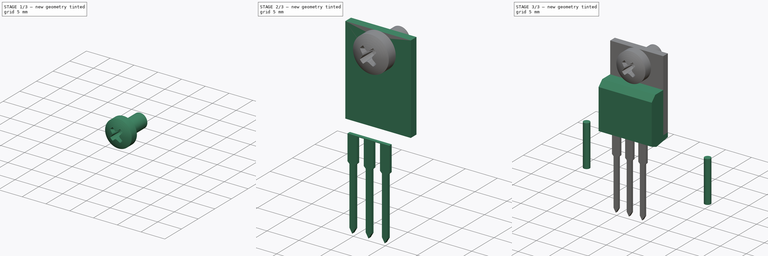
[diagram: build sequence overview — one tinted view per stage of 3, left to right]
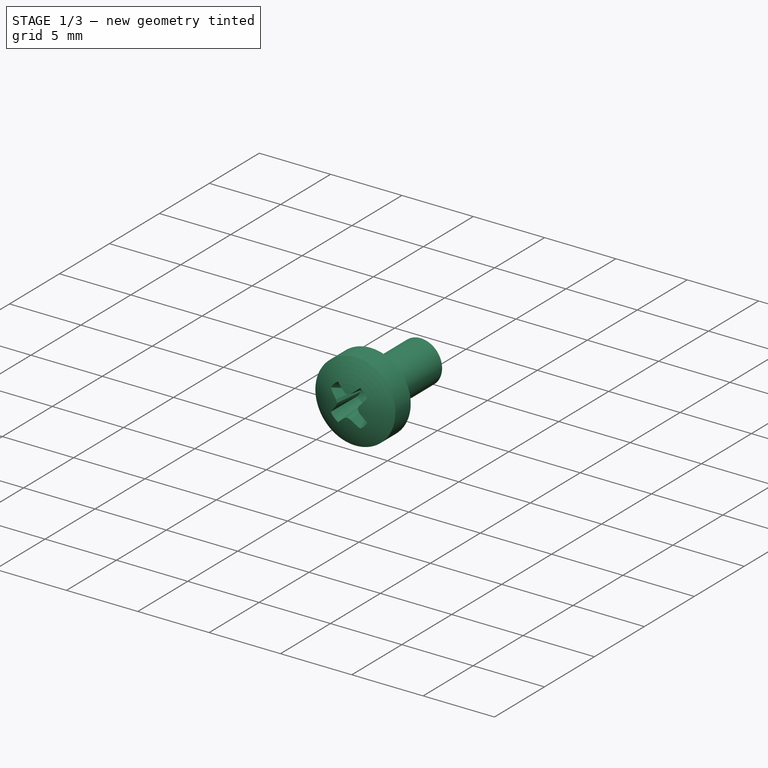
[diagram: stage 1 of 3 — iso view after this stage's code; geometry added in this stage tinted green]
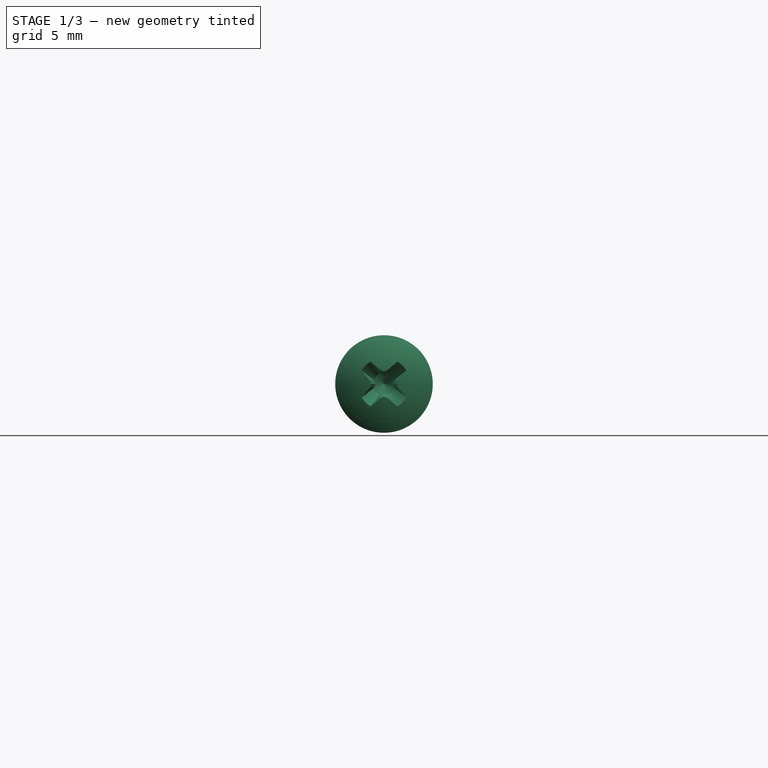
[diagram: stage 1 of 3 — front view after this stage's code; geometry added in this stage tinted green]
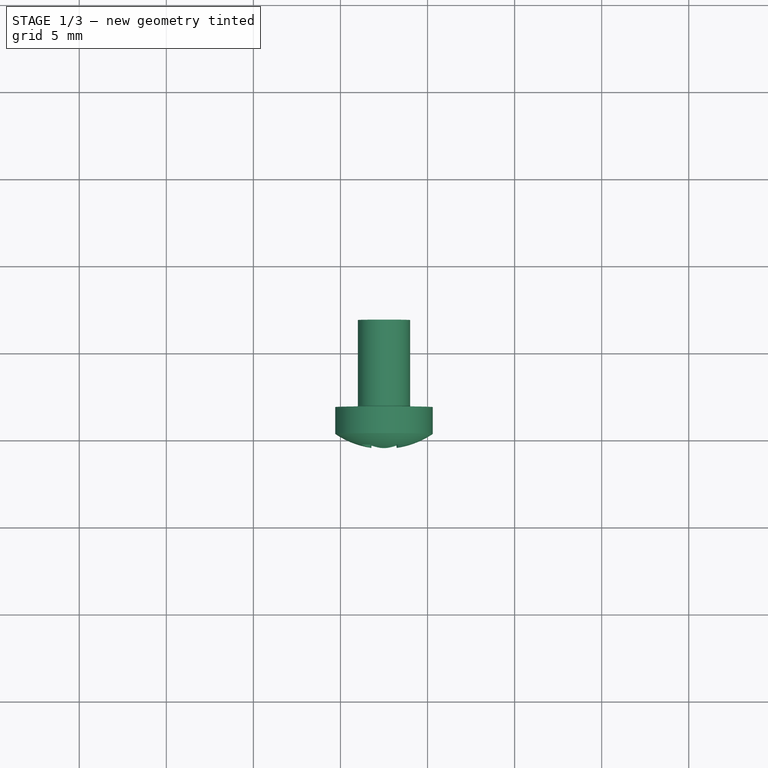
[diagram: stage 1 of 3 — top view after this stage's code; geometry added in this stage tinted green]
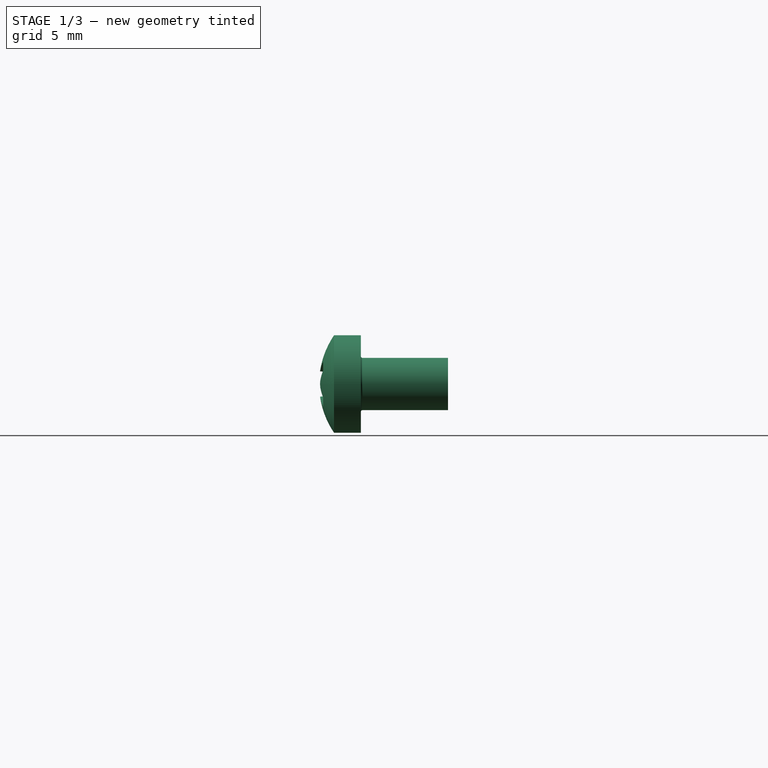
[diagram: stage 1 of 3 — right view after this stage's code; geometry added in this stage tinted green]
FCSTD DOCUMENT  (FreeCAD 0.20R25429 (Git))
Label: Heatsink-30x25x25_LM7805_TO220-3
License: All rights reserved
LicenseURL: http://en.wikipedia.org/wiki/All_rights_reserved
objects: Sketcher::SketchObject×7, PartDesign::Pad×6, PartDesign::Body×6, PartDesign::Pocket×1, Part::FeaturePython×1
note: 28 computed .brp shape members not serialized (recipe doc carries the construction recipe); baked Part::Feature solids carry a one-line shape summary decoded from their .brp

FEATURE [Sketcher::SketchObject] Sketch012  label="Heatsink Radiator001"
  FullyConstrained = true
  MapMode = 5
  Support = -> [XY_Plane]
  sketch-geometry (36):
    g0: LineSegment StartX=-12.56 StartY=-7.84 StartZ=0 EndX=-11.56 EndY=-7.84 EndZ=0
    g1: LineSegment StartX=-11.56 StartY=-7.84 StartZ=0 EndX=-11.56 EndY=3.16 EndZ=0
    g2: LineSegment StartX=16.64 StartY=3.16 StartZ=0 EndX=16.64 EndY=-7.84 EndZ=0
    g3: LineSegment StartX=16.64 StartY=-7.84 StartZ=0 EndX=17.64 EndY=-7.84 EndZ=0
    g4: LineSegment StartX=17.64 StartY=-7.84 StartZ=0 EndX=17.64 EndY=17.16 EndZ=0
    g5: LineSegment StartX=17.64 StartY=17.16 StartZ=0 EndX=16.64 EndY=17.16 EndZ=0
    g6: LineSegment StartX=16.64 StartY=17.16 StartZ=0 EndX=16.64 EndY=6.16 EndZ=0
    g7: LineSegment StartX=16.64 StartY=6.16 StartZ=0 EndX=14.82 EndY=6.16 EndZ=0
    g8: LineSegment StartX=11.8 StartY=6.16 StartZ=0 EndX=11.8 EndY=17.16 EndZ=0
    g9: LineSegment StartX=11.8 StartY=17.16 StartZ=0 EndX=10.8 EndY=17.16 EndZ=0
    g10: LineSegment StartX=10.8 StartY=17.16 StartZ=0 EndX=10.8 EndY=4.56 EndZ=0
    g11: LineSegment StartX=10.8 StartY=4.56 StartZ=0 EndX=5.96 EndY=4.56 EndZ=0
    g12: LineSegment StartX=5.96 StartY=4.56 StartZ=0 EndX=5.96 EndY=17.16 EndZ=0
    g13: LineSegment StartX=5.96 StartY=17.16 StartZ=0 EndX=4.96 EndY=17.16 EndZ=0
    g14: LineSegment StartX=4.96 StartY=17.16 StartZ=0 EndX=4.96 EndY=6.16 EndZ=0
    g15: LineSegment StartX=4.96 StartY=6.16 StartZ=0 EndX=0.12 EndY=6.16 EndZ=0
    g16: LineSegment StartX=0.12 StartY=6.16 StartZ=0 EndX=0.12 EndY=17.16 EndZ=0
    g17: LineSegment StartX=0.12 StartY=17.16 StartZ=0 EndX=-0.88 EndY=17.16 EndZ=0
    g18: LineSegment StartX=-0.88 StartY=17.16 StartZ=0 EndX=-0.88 EndY=4.56 EndZ=0
    g19: LineSegment StartX=-0.88 StartY=4.56 StartZ=0 EndX=-5.72 EndY=4.56 EndZ=0
    g20: LineSegment StartX=-5.72 StartY=4.56 StartZ=0 EndX=-5.72 EndY=17.16 EndZ=0
    g21: LineSegment StartX=-5.72 StartY=17.16 StartZ=0 EndX=-6.72 EndY=17.16 EndZ=0
    g22: LineSegment StartX=-6.72 StartY=17.16 StartZ=0 EndX=-6.72 EndY=6.16 EndZ=0
    g23: LineSegment StartX=-6.72 StartY=6.16 StartZ=0 EndX=-8.54 EndY=6.16 EndZ=0
    g24: LineSegment StartX=-11.56 StartY=6.16 StartZ=0 EndX=-11.56 EndY=17.16 EndZ=0
    g25: LineSegment StartX=-11.56 StartY=17.16 StartZ=0 EndX=-12.56 EndY=17.16 EndZ=0
    g26: LineSegment StartX=-12.56 StartY=17.16 StartZ=0 EndX=-12.56 EndY=-7.84 EndZ=0
    g27: ArcOfCircle CenterX=-9.14 CenterY=4.76 CenterZ=0 NormalX=0 NormalY=0 NormalZ=1 AngleXU=0 Radius=0.6 StartAngle=3.14159 EndAngle=6.28319
    g28: LineSegment StartX=11.8 StartY=6.16 StartZ=0 EndX=13.62 EndY=6.16 EndZ=0
    g29: LineSegment StartX=13.62 StartY=6.16 StartZ=0 EndX=13.62 EndY=4.76 EndZ=0
    g30: LineSegment StartX=14.82 StartY=6.16 StartZ=0 EndX=14.82 EndY=4.76 EndZ=0
    g31: ArcOfCircle CenterX=14.22 CenterY=4.76 CenterZ=0 NormalX=0 NormalY=0 NormalZ=1 AngleXU=0 Radius=0.6 StartAngle=3.14159 EndAngle=6.28319
    g32: LineSegment StartX=-8.54 StartY=6.16 StartZ=0 EndX=-8.54 EndY=4.76 EndZ=0
    g33: LineSegment StartX=-11.56 StartY=6.16 StartZ=0 EndX=-9.74 EndY=6.16 EndZ=0
    g34: LineSegment StartX=-9.74 StartY=6.16 StartZ=0 EndX=-9.74 EndY=4.76 EndZ=0
    g35: LineSegment StartX=-11.56 StartY=3.16 StartZ=0 EndX=16.64 EndY=3.16 EndZ=0
  constraints (106):
    c: Horizontal(g0)
    c: Coincident(g0,g1)
    c: Vertical(g1)
    c: Vertical(g2)
    c: Coincident(g2,g3)
    c: Horizontal(g3)
    c: Coincident(g3,g4)
    c: Vertical(g4)
    c: Coincident(g4,g5)
    c: Horizontal(g5)
    c: Coincident(g5,g6)
    c: Vertical(g6)
    c: Coincident(g6,g7)
    c: Horizontal(g7)
    c: Vertical(g8)
    c: Coincident(g8,g9)
    c: Horizontal(g9)
    c: Coincident(g9,g10)
    c: Vertical(g10)
    c: Coincident(g10,g11)
    c: Horizontal(g11)
    c: Coincident(g11,g12)
    c: Vertical(g12)
    c: Coincident(g12,g13)
    c: Horizontal(g13)
    c: Coincident(g13,g14)
    c: Vertical(g14)
    c: Coincident(g14,g15)
    c: Horizontal(g15)
    c: Coincident(g15,g16)
    c: Vertical(g16)
    c: Coincident(g16,g17)
    c: Horizontal(g17)
    c: Coincident(g17,g18)
    c: Vertical(g18)
    c: Coincident(g18,g19)
    c: Horizontal(g19)
    c: Coincident(g19,g20)
    c: Vertical(g20)
    c: Coincident(g20,g21)
    c: Horizontal(g21)
    c: Coincident(g21,g22)
    c: Vertical(g22)
    c: Coincident(g22,g23)
    c: Horizontal(g23)
    c: Vertical(g24)
    c: Coincident(g24,g25)
    c: Horizontal(g25)
    c: Coincident(g25,g26)
    c: Vertical(g26)
    c: Coincident(g26,g0)
    c: DistanceX(g25,g4) = 30.2
    c: DistanceX(g25,g25) = 1
    c: DistanceX(g21,g21) = 1
    c: DistanceX(g17,g17) = 1
    c: DistanceX(g13,g13) = 1
    c: DistanceX(g9,g9) = 1
    c: DistanceX(g5,g5) = 1
    c: DistanceX(g24,g21) = 4.84
    c: DistanceX(g20,g17) = 4.84
    c: DistanceX(g16,g13) = 4.84
    c: DistanceX(g12,g9) = 4.84
    c: DistanceX(g0,g0) = 1
    c: DistanceX(g3,g3) = 1
    c: DistanceY(g2,g6) = 3
    c: DistanceY(g2,g10) = 1.4
    c: DistanceY(g1,g23) = 3
    c: DistanceY(g1,g19) = 1.4
    c: DistanceY(g2,g14) = 3
    c: DistanceY(g21,g24) = 0
    c: DistanceY(g20,g17) = 0
    c: DistanceY(g16,g13) = 0
    c: DistanceY(g12,g9) = 0
    c: DistanceY(g8,g5) = 0
    c: DistanceY(g3,g2) = 11
    c: DistanceY(g3,g4) = 25
    c: Coincident(g28,g8)
    c: Horizontal(g28)
    c: Coincident(g29,g28)
    c: Vertical(g29)
    c: Coincident(g30,g7)
    c: Vertical(g30)
    c: Vertical(g32)
    c: Coincident(g33,g24)
    c: Horizontal(g33)
    c: Vertical(g34)
    c: Coincident(g34,g33)
    c: Coincident(g23,g32)
    c: Tangent(g27,g34) = -1.5708
    c: Tangent(g27,g32) = 1.5708
    c: Tangent(g29,g31) = -1.5708
    c: Tangent(g31,g30) = 1.5708
    c: Radius(g31) = 0.6
    c: Radius(g27) = 0.6
    c: DistanceY(g2,g31) = 1.6
    c: DistanceY(g1,g27) = 1.6
    c: DistanceY(g28,g7) = 0
    c: DistanceY(g33,g23) = 0
    c: DistanceX(g24,g27) = 2.42
    c: DistanceX(g31,g6) = 2.42
    c: DistanceX(g-1,g15) = 0.12
    c: DistanceY(g-1,g1) = 3.16
    c: Coincident(g35,g1)
    c: Coincident(g35,g2)
    c: Horizontal(g35)
    c: Horizontal(g2,g0)
FEATURE [PartDesign::Pad] Pad
  Direction = (0,0,1)
  Length = 25
  Length2 = 100
  Profile = -> Sketch012
  Type = 0
FEATURE [Sketcher::SketchObject] Sketch013  label="Heatsink Screwhole001"
  AttachmentOffset = pos=(0,0,-3.16) rot=(0,0,1;0rad)
  FullyConstrained = true
  MapMode = 5
  Placement = pos=(0,3.16,-7e-16) rot=(1,0,0;1.5708rad)
  Support = -> [XZ_Plane]
  sketch-geometry (1):
    g0: Circle CenterX=2.5 CenterY=18.25 CenterZ=0 NormalX=0 NormalY=0 NormalZ=1 AngleXU=0 Radius=1.25
  constraints (3):
    c: Radius(g0) = 1.25
    c: DistanceX(g-1,g0) = 2.5
    c: DistanceY(g-1,g0) = 18.25
FEATURE [PartDesign::Pocket] Pocket
  BaseFeature = -> Pad
  Length = 5
  Length2 = 100
  Profile = -> Sketch013
  Type = 1
FEATURE [PartDesign::Body] Body005  label="TO220-3 Legs"
  Group = -> [Sketch018,Pad005]
  Origin = -> Origin005
  Tip = -> Pad005
FEATURE [Part::FeaturePython] Screw  label="M3x5-Screw"  # Fasteners workbench fastener (typed FeaturePython)
  Placement = pos=(2.5,1.89,18.25) rot=(1,0,0;1.5708rad)
  baseObject = -> Body [Edge82]
  diameter = 4
  invert = false
  length = 1
  lengthCustom = 5
  matchOuter = false
  offset = 1.27
  thread = false
  type = 33
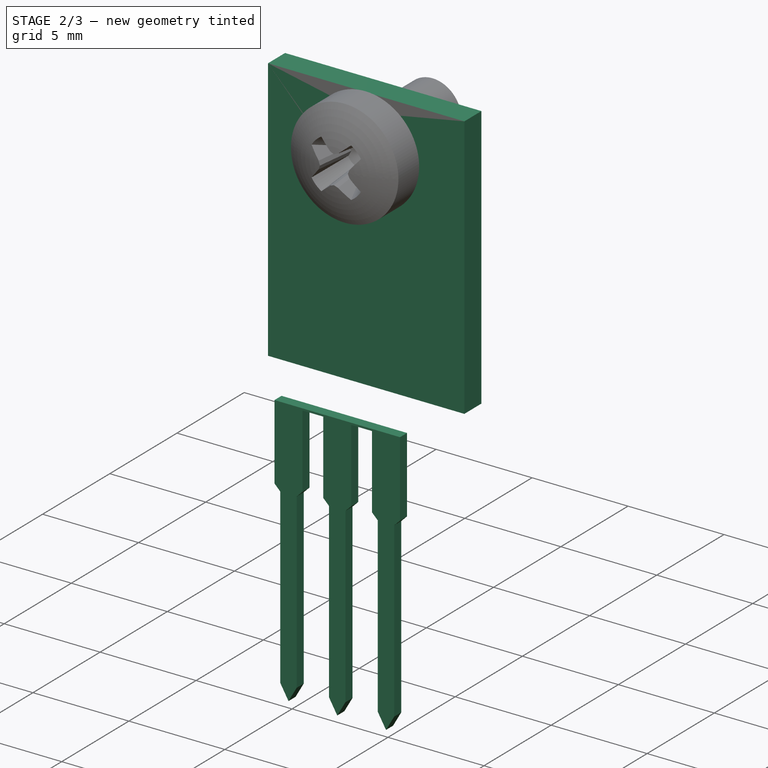
[diagram: stage 2 of 3 — iso view after this stage's code; geometry added in this stage tinted green]
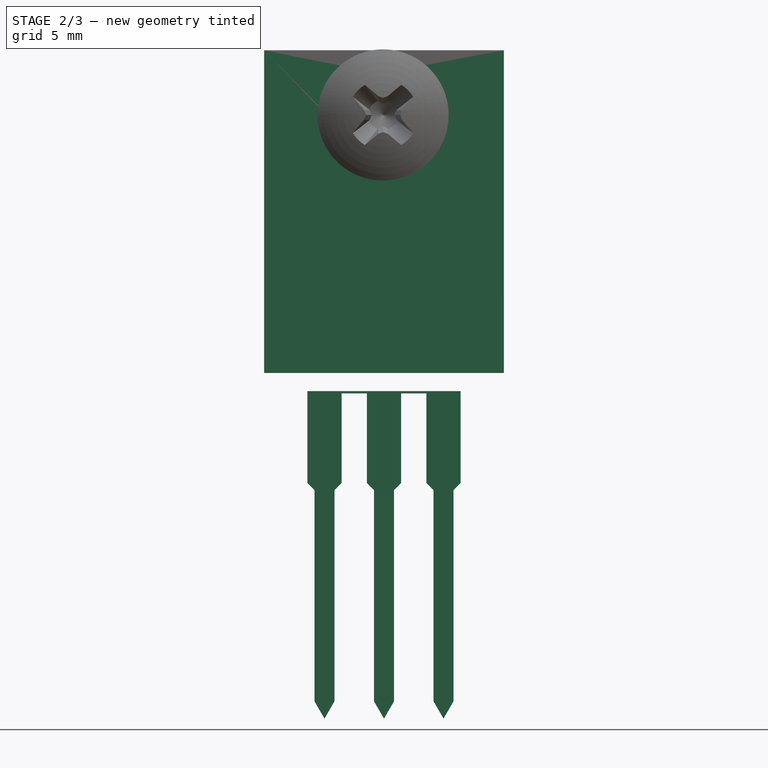
[diagram: stage 2 of 3 — front view after this stage's code; geometry added in this stage tinted green]
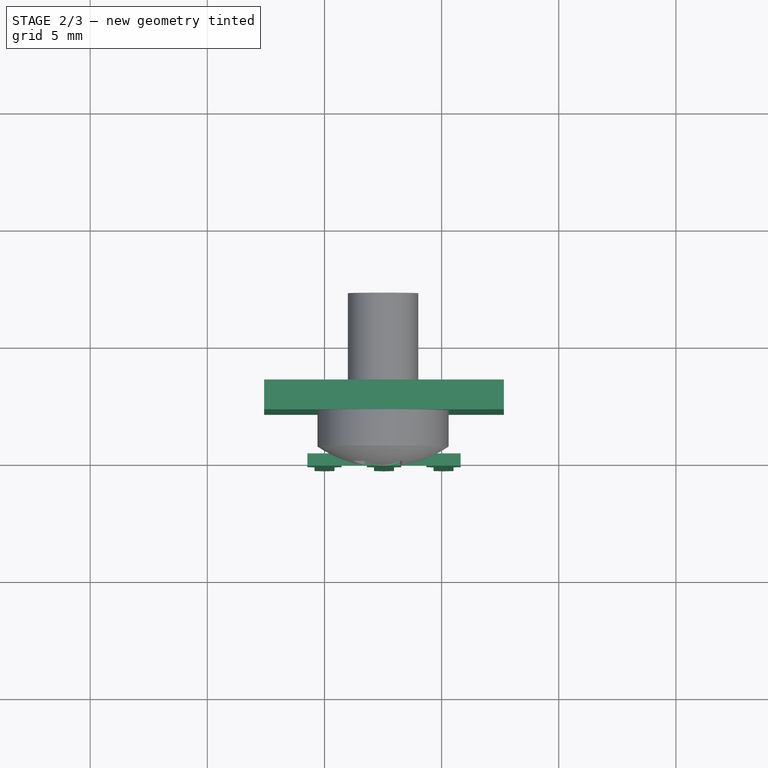
[diagram: stage 2 of 3 — top view after this stage's code; geometry added in this stage tinted green]
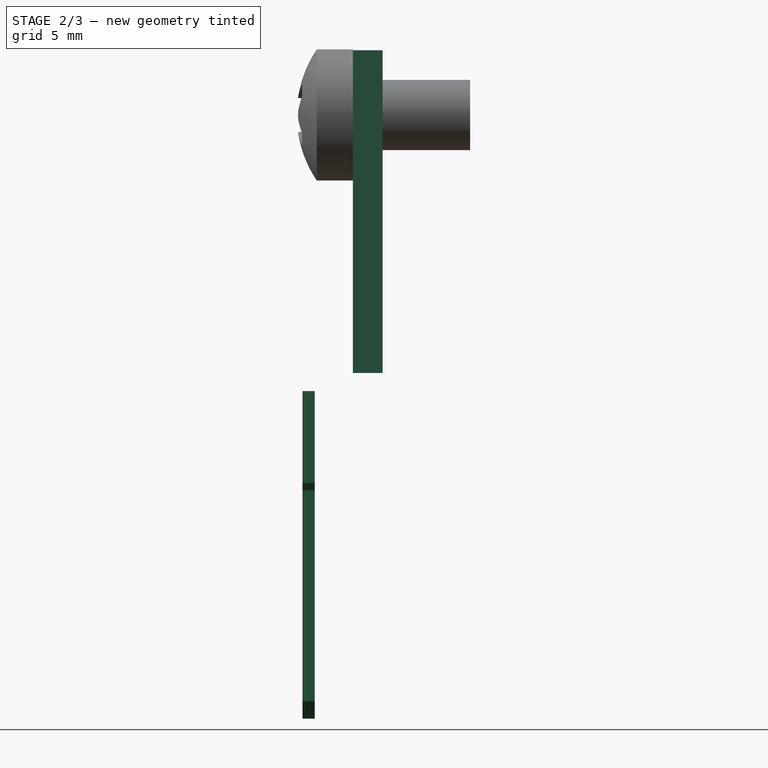
[diagram: stage 2 of 3 — right view after this stage's code; geometry added in this stage tinted green]
FEATURE [PartDesign::Body] Body003  label="TO220-3 Belly"
  Group = -> [Sketch016,Pad003]
  Origin = -> Origin003
  Tip = -> Pad003
FEATURE [PartDesign::Pad] Pad004
  Direction = (0,-1,2e-16)
  Length = 1.27
  Length2 = 100
  Placement = pos=(0,0,0) rot=(1,0,0;1.5708rad)
  Profile = -> Sketch019
  Type = 0
FEATURE [PartDesign::Body] Body004  label="TO220-3 Back"
  Group = -> [Sketch019,Pad004]
  Origin = -> Origin004
  Tip = -> Pad004
FEATURE [PartDesign::Pad] Pad005
  Direction = (0,-1,2e-16)
  Length = 0.525
  Length2 = 100
  Midplane = true
  Placement = pos=(0,0,0) rot=(1,0,0;1.5708rad)
  Profile = -> Sketch018
  Refine = true
  Type = 0
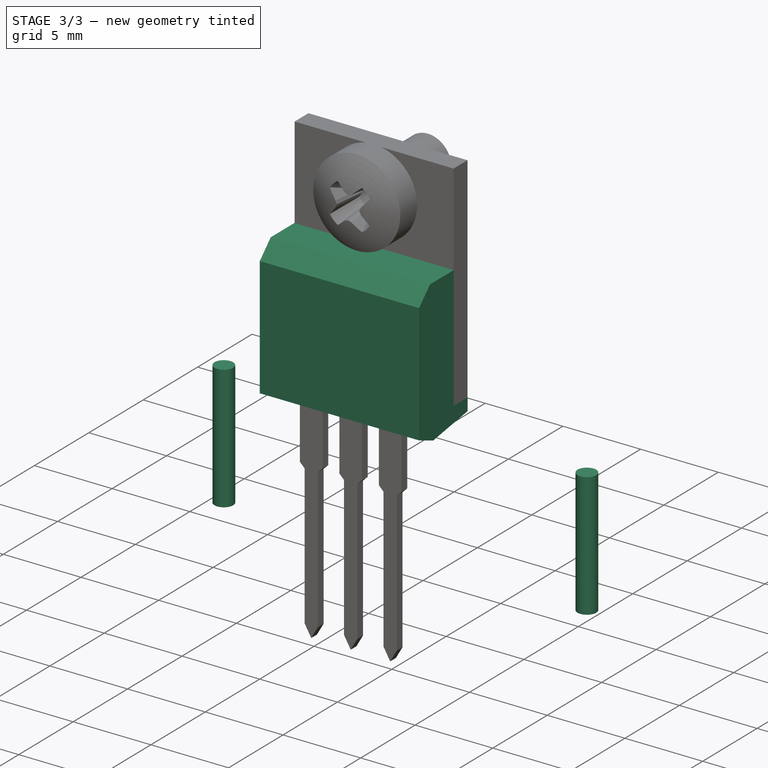
[diagram: stage 3 of 3 — iso view after this stage's code; geometry added in this stage tinted green]
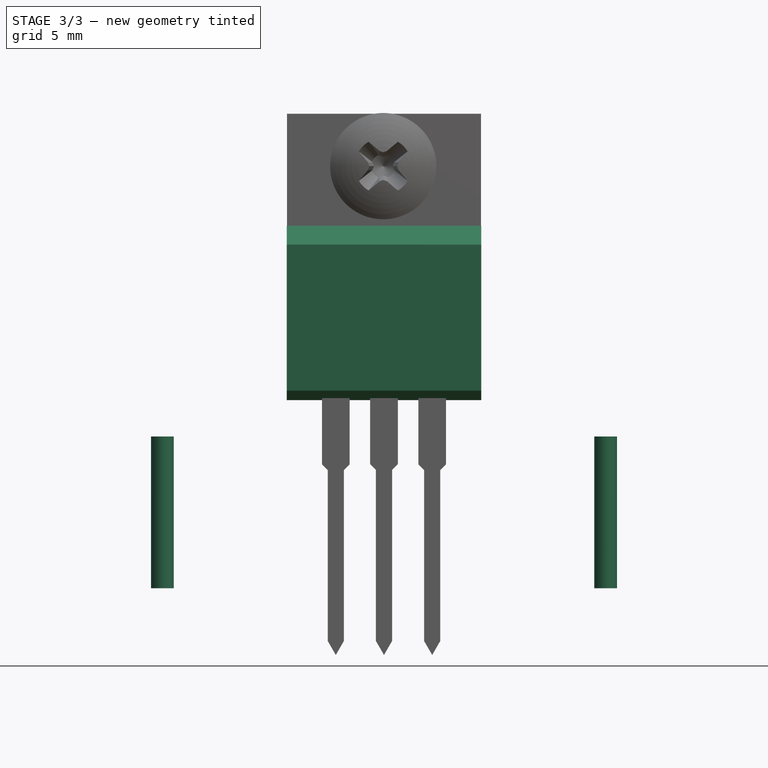
[diagram: stage 3 of 3 — front view after this stage's code; geometry added in this stage tinted green]
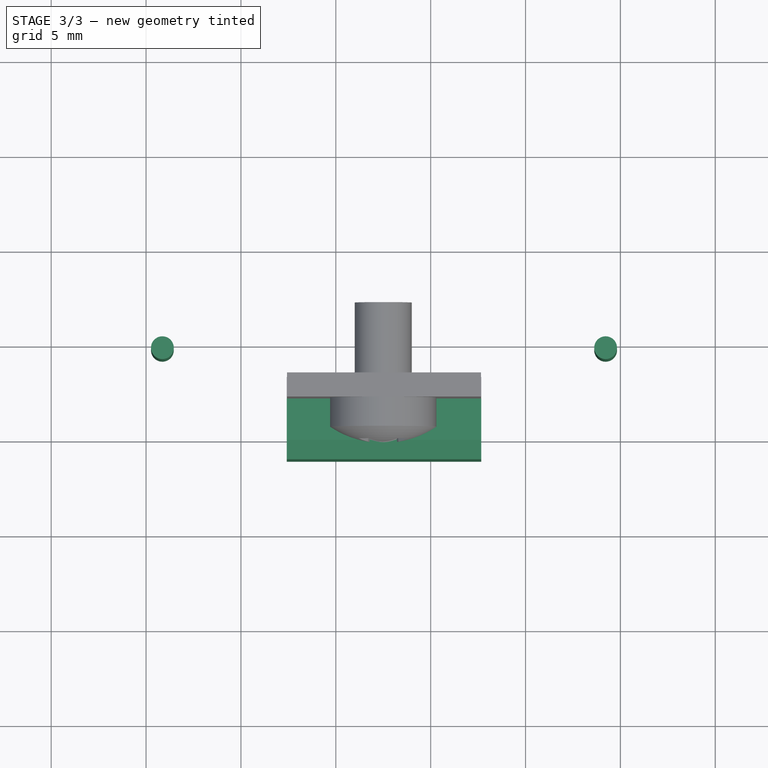
[diagram: stage 3 of 3 — top view after this stage's code; geometry added in this stage tinted green]
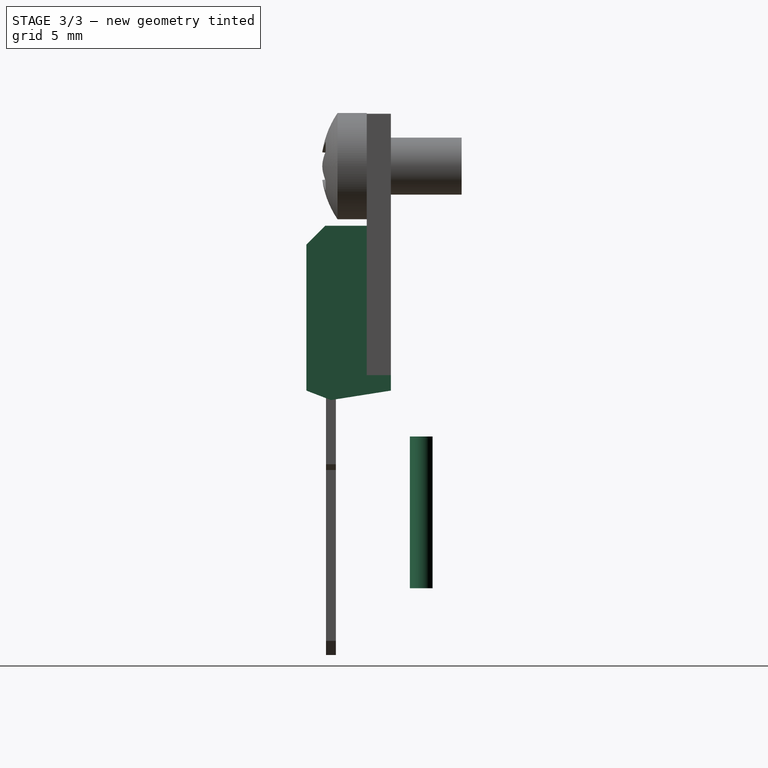
[diagram: stage 3 of 3 — right view after this stage's code; geometry added in this stage tinted green]
FEATURE [PartDesign::Body] Body  label="HTS Radiator"
  Group = -> [Sketch012,Pad,Sketch013,Pocket]
  Origin = -> Origin
  Tip = -> Pocket
FEATURE [Sketcher::SketchObject] Sketch014  label="Heatsink Foot R001"
  FullyConstrained = true
  MapMode = 5
  Support = -> [XY_Plane001]
  sketch-geometry (1):
    g0: Circle CenterX=-9.14 CenterY=4.76 CenterZ=0 NormalX=0 NormalY=0 NormalZ=1 AngleXU=0 Radius=0.6
  constraints (3):
    c: Diameter(g0) = 1.2
    c: DistanceX(g0) = -9.14
    c: DistanceY(g0) = 4.76
FEATURE [PartDesign::Pad] Pad001
  Direction = (0,0,1)
  Length = 8
  Length2 = 100
  Midplane = true
  Profile = -> Sketch014
  Type = 0
FEATURE [PartDesign::Body] Body001  label="HTS Foot R"
  Group = -> [Sketch014,Pad001]
  Origin = -> Origin001
  Tip = -> Pad001
FEATURE [Sketcher::SketchObject] Sketch015  label="Heatsink Foot L001"
  FullyConstrained = true
  MapMode = 5
  Support = -> [XY_Plane002]
  sketch-geometry (1):
    g0: Circle CenterX=14.22 CenterY=4.76 CenterZ=0 NormalX=0 NormalY=0 NormalZ=1 AngleXU=0 Radius=0.6
  constraints (3):
    c: Diameter(g0) = 1.2
    c: DistanceX(g0) = 14.22
    c: DistanceY(g0) = 4.76
FEATURE [PartDesign::Pad] Pad002
  Direction = (0,0,1)
  Length = 8
  Length2 = 100
  Midplane = true
  Profile = -> Sketch015
  Type = 0
FEATURE [PartDesign::Body] Body002  label="HTS Fool L"
  Group = -> [Sketch015,Pad002]
  Origin = -> Origin002
  Tip = -> Pad002
FEATURE [Sketcher::SketchObject] Sketch016  label="TO 220-3 Belly001"
  AttachmentOffset = pos=(0,0,-2.585) rot=(0,0,1;0rad)
  FullyConstrained = true
  MapMode = 5
  Placement = pos=(-2.585,6e-16,-6e-16) rot=(0.57735,0.57735,0.57735;2.0944rad)
  Support = -> [YZ_Plane003]
  sketch-geometry (8):
    g0: LineSegment StartX=3.16 StartY=6.42 StartZ=0 EndX=0 EndY=5.92 EndZ=0
    g1: LineSegment StartX=0 StartY=5.92 StartZ=0 EndX=-1.295 EndY=6.42 EndZ=0
    g2: LineSegment StartX=-1.295 StartY=6.42 StartZ=0 EndX=-1.295 EndY=14.11 EndZ=0
    g3: LineSegment StartX=-1.295 StartY=14.11 StartZ=0 EndX=-0.295 EndY=15.11 EndZ=0
    g4: LineSegment StartX=-0.295 StartY=15.11 StartZ=0 EndX=1.89 EndY=15.11 EndZ=0
    g5: LineSegment StartX=1.89 StartY=15.11 StartZ=0 EndX=1.89 EndY=7.235 EndZ=0
    g6: LineSegment StartX=1.89 StartY=7.235 StartZ=0 EndX=3.16 EndY=7.235 EndZ=0
    g7: LineSegment StartX=3.16 StartY=7.235 StartZ=0 EndX=3.16 EndY=6.42 EndZ=0
  constraints (24):
    c: Coincident(g0,g1)
    c: Coincident(g1,g2)
    c: Coincident(g2,g3)
    c: Coincident(g3,g4)
    c: Coincident(g4,g5)
    c: Vertical(g5)
    c: Coincident(g5,g6)
    c: Coincident(g6,g7)
    c: Coincident(g7,g0)
    c: Horizontal(g6)
    c: PointOnObject(g0,g-2)
    c: DistanceX(g1) = -1.295
    c: Vertical(g2)
    c: Horizontal(g4)
    c: Vertical(g7)
    c: DistanceY(g2,g2) = 7.69
    c: DistanceX(g0) = 3.16
    c: DistanceY(g7,g7) = 0.815
    c: DistanceX(g2,g3) = 1
    c: DistanceX(g4,g4) = 2.185
    c: DistanceY(g0,g1) = 0.5
    c: DistanceY(g0,g0) = 0.5
    c: DistanceY(g2,g3) = 1
    c: DistanceY(g0) = 5.92
FEATURE [Sketcher::SketchObject] Sketch018  label="TO 220-3 Legs001"
  FullyConstrained = true
  MapMode = 5
  Placement = pos=(0,0,0) rot=(1,0,0;1.5708rad)
  Support = -> [XZ_Plane005]
  sketch-geometry (36):
    g0: LineSegment StartX=-0.73 StartY=5.965 StartZ=0 EndX=-0.73 EndY=2.5375 EndZ=0
    g1: LineSegment StartX=-0.73 StartY=2.5375 StartZ=0 EndX=-0.4275 EndY=2.235 EndZ=0
    g2: LineSegment StartX=-0.4275 StartY=2.235 StartZ=0 EndX=-0.4275 EndY=-6.77455 EndZ=0
    g3: LineSegment StartX=-0.4275 StartY=-6.77455 StartZ=0 EndX=0 EndY=-7.515 EndZ=0
    g4: LineSegment StartX=-1e-16 StartY=-7.515 StartZ=0 EndX=0.4275 EndY=-6.77455 EndZ=0
    g5: LineSegment StartX=0.4275 StartY=-6.77455 StartZ=0 EndX=0.4275 EndY=2.235 EndZ=0
    g6: LineSegment StartX=0.4275 StartY=2.235 StartZ=0 EndX=0.73 EndY=2.5375 EndZ=0
    g7: LineSegment StartX=0.73 StartY=2.5375 StartZ=0 EndX=0.73 EndY=5.965 EndZ=0
    g8: LineSegment StartX=0.73 StartY=5.965 StartZ=0 EndX=-0.73 EndY=5.965 EndZ=0
    g9: LineSegment StartX=1.81 StartY=5.965 StartZ=0 EndX=1.81 EndY=2.5375 EndZ=0
    g10: LineSegment StartX=1.81 StartY=2.5375 StartZ=0 EndX=2.1125 EndY=2.235 EndZ=0
    g11: LineSegment StartX=2.1125 StartY=2.235 StartZ=0 EndX=2.1125 EndY=-6.77455 EndZ=0
    g12: LineSegment StartX=2.1125 StartY=-6.77455 StartZ=0 EndX=2.54 EndY=-7.515 EndZ=0
    g13: LineSegment StartX=2.54 StartY=-7.515 StartZ=0 EndX=2.9675 EndY=-6.77455 EndZ=0
    g14: LineSegment StartX=2.9675 StartY=-6.77455 StartZ=0 EndX=2.9675 EndY=2.235 EndZ=0
    g15: LineSegment StartX=2.9675 StartY=2.235 StartZ=0 EndX=3.27 EndY=2.5375 EndZ=0
    g16: LineSegment StartX=3.27 StartY=2.5375 StartZ=0 EndX=3.27 EndY=5.965 EndZ=0
    g17: LineSegment StartX=3.27 StartY=5.965 StartZ=0 EndX=1.81 EndY=5.965 EndZ=0
    g18: LineSegment StartX=4.35 StartY=5.965 StartZ=0 EndX=4.35 EndY=2.5375 EndZ=0
    g19: LineSegment StartX=4.35 StartY=2.5375 StartZ=0 EndX=4.6525 EndY=2.235 EndZ=0
    g20: LineSegment StartX=4.6525 StartY=2.235 StartZ=0 EndX=4.6525 EndY=-6.77455 EndZ=0
    g21: LineSegment StartX=4.6525 StartY=-6.77455 StartZ=0 EndX=5.08 EndY=-7.515 EndZ=0
    g22: LineSegment StartX=5.08 StartY=-7.515 StartZ=0 EndX=5.5075 EndY=-6.77455 EndZ=0
    g23: LineSegment StartX=5.5075 StartY=-6.77455 StartZ=0 EndX=5.5075 EndY=2.235 EndZ=0
    g24: LineSegment StartX=5.5075 StartY=2.235 StartZ=0 EndX=5.81 EndY=2.5375 EndZ=0
    g25: LineSegment StartX=5.81 StartY=2.5375 StartZ=0 EndX=5.81 EndY=5.965 EndZ=0
    g26: LineSegment StartX=5.81 StartY=5.965 StartZ=0 EndX=4.35 EndY=5.965 EndZ=0
    g27: LineSegment StartX=-0.73 StartY=5.965 StartZ=0 EndX=-0.73 EndY=6.465 EndZ=0
    g28: LineSegment StartX=-0.73 StartY=6.465 StartZ=0 EndX=5.81 EndY=6.465 EndZ=0
    g29: LineSegment StartX=5.81 StartY=6.465 StartZ=0 EndX=5.81 EndY=5.965 EndZ=0
    g30: LineSegment StartX=1.81 StartY=5.965 StartZ=0 EndX=1.81 EndY=6.365 EndZ=0
    g31: LineSegment StartX=1.81 StartY=6.365 StartZ=0 EndX=0.73 EndY=6.365 EndZ=0
    g32: LineSegment StartX=0.73 StartY=6.365 StartZ=0 EndX=0.73 EndY=5.965 EndZ=0
    g33: LineSegment StartX=4.35 StartY=5.965 StartZ=0 EndX=4.35 EndY=6.365 EndZ=0
    g34: LineSegment StartX=4.35 StartY=6.365 StartZ=0 EndX=3.27 EndY=6.365 EndZ=0
    g35: LineSegment StartX=3.27 StartY=6.365 StartZ=0 EndX=3.27 EndY=5.965 EndZ=0
  constraints (105):
    c: Coincident(g0,g1)
    c: Coincident(g1,g2)
    c: Coincident(g2,g3)
    c: Coincident(g3,g4)
    c: Coincident(g4,g5)
    c: Coincident(g5,g6)
    c: Coincident(g6,g7)
    c: Coincident(g7,g8)
    c: Coincident(g8,g0)
    c: Coincident(g9,g10)
    c: Coincident(g10,g11)
    c: Coincident(g11,g12)
    c: Coincident(g12,g13)
    c: Coincident(g13,g14)
    c: Coincident(g14,g15)
    c: Coincident(g15,g16)
    c: Coincident(g16,g17)
    c: Coincident(g17,g9)
    c: Coincident(g18,g19)
    c: Coincident(g19,g20)
    c: Coincident(g20,g21)
    c: Coincident(g21,g22)
    c: Coincident(g22,g23)
    c: Coincident(g23,g24)
    c: Coincident(g24,g25)
    c: Coincident(g25,g26)
    c: Coincident(g26,g18)
    c: Horizontal(g8)
    c: Horizontal(g17)
    c: Vertical(g0)
    c: Vertical(g7)
    c: Vertical(g9)
    c: Vertical(g16)
    c: Vertical(g18)
    c: Vertical(g25)
    c: Vertical(g2)
    c: Vertical(g5)
    c: Vertical(g11)
    c: Vertical(g14)
    c: Vertical(g20)
    c: Vertical(g23)
    c: Equal(g3,g4)
    c: Equal(g4,g12)
    c: Equal(g12,g13)
    c: Equal(g13,g21)
    c: Equal(g21,g22)
    c: Equal(g2,g5)
    c: Equal(g5,g11)
    c: Equal(g11,g14)
    c: Equal(g14,g20)
    c: Equal(g20,g23)
    c: Equal(g1,g6)
    c: Equal(g6,g10)
    c: Equal(g10,g15)
    c: Equal(g15,g19)
    c: Equal(g19,g24)
    c: Equal(g0,g7)
    c: Equal(g7,g9)
    c: Equal(g9,g16)
    c: Equal(g16,g18)
    c: Equal(g18,g25)
    c: Equal(g8,g17)
    c: DistanceX(g8,g8) = 1.46
    c: DistanceX(g7,g9) = 1.08
    c: DistanceX(g16,g18) = 1.08
    c: DistanceX(g0,g1) = 0.3025
    c: DistanceX(g2,g3) = 0.4275
    c: PointOnObject(g3,g-2)
    c: DistanceX(g3,g12) = 2.54
    c: DistanceX(g12,g21) = 2.54
    c: Horizontal(g4,g11)
    c: DistanceX(g11,g13) = 0.855
    c: DistanceX(g20,g22) = 0.855
    c: Horizontal(g3,g21)
    c: DistanceY(g1,g0) = 0.3025
    c: DistanceY(g2,g1) = 9.00955
    c: DistanceY(g3,g1) = 9.75
    c: DistanceY(g1,g0) = 3.73
    c: DistanceY(g-1,g23) = 2.235
    c: Horizontal(g16,g18)
    c: Horizontal(g26)
    c: Coincident(g0,g27)
    c: Vertical(g27)
    c: Coincident(g27,g28)
    c: Horizontal(g28)
    c: Coincident(g28,g29)
    c: Coincident(g29,g25)
    c: Vertical(g29)
    c: Coincident(g30,g31)
    c: Coincident(g31,g32)
    c: Horizontal(g31)
    c: Vertical(g30)
    c: Vertical(g32)
    c: Coincident(g33,g34)
    c: Coincident(g34,g35)
    c: Horizontal(g34)
    c: Vertical(g33)
    c: Vertical(g35)
    c: Coincident(g35,g16)
    c: DistanceY(g29,g29) = 0.5
    c: Coincident(g33,g18)
    c: Coincident(g32,g7)
    c: Coincident(g30,g9)
    c: Horizontal(g34,g30)
    c: DistanceY(g18,g33) = 0.4
FEATURE [Sketcher::SketchObject] Sketch019  label="TO 220-3  Back001"
  AttachmentOffset = pos=(0,0,-3.16) rot=(0,0,1;0rad)
  FullyConstrained = true
  MapMode = 5
  Placement = pos=(0,3.16,-7e-16) rot=(1,0,0;1.5708rad)
  Support = -> [XZ_Plane004]
  sketch-geometry (5):
    g0: Circle CenterX=2.54 CenterY=18.24 CenterZ=0 NormalX=0 NormalY=0 NormalZ=1 AngleXU=0 Radius=1.8675
    g1: LineSegment StartX=-2.575 StartY=21.01 StartZ=0 EndX=7.655 EndY=21.01 EndZ=0
    g2: LineSegment StartX=7.655 StartY=21.01 StartZ=0 EndX=7.655 EndY=7.235 EndZ=0
    g3: LineSegment StartX=7.655 StartY=7.235 StartZ=0 EndX=-2.575 EndY=7.235 EndZ=0
    g4: LineSegment StartX=-2.575 StartY=7.235 StartZ=0 EndX=-2.575 EndY=21.01 EndZ=0
  constraints (15):
    c: Diameter(g0) = 3.735
    c: DistanceX(g0) = 2.54
    c: Coincident(g1,g2)
    c: Coincident(g2,g3)
    c: Coincident(g3,g4)
    c: Coincident(g4,g1)
    c: Horizontal(g1)
    c: Horizontal(g3)
    c: Vertical(g2)
    c: Vertical(g4)
    c: DistanceX(g3) = -2.575
    c: DistanceY(g3) = 7.235
    c: DistanceY(g4,g4) = 13.775
    c: DistanceX(g1,g1) = 10.23
    c: DistanceY(g2,g0) = 11.005
FEATURE [PartDesign::Pad] Pad003
  Direction = (1,-2e-16,3e-16)
  Length = 10.25
  Length2 = 100
  Placement = pos=(0,0,0) rot=(0.57735,0.57735,0.57735;2.0944rad)
  Profile = -> Sketch016
  Type = 0
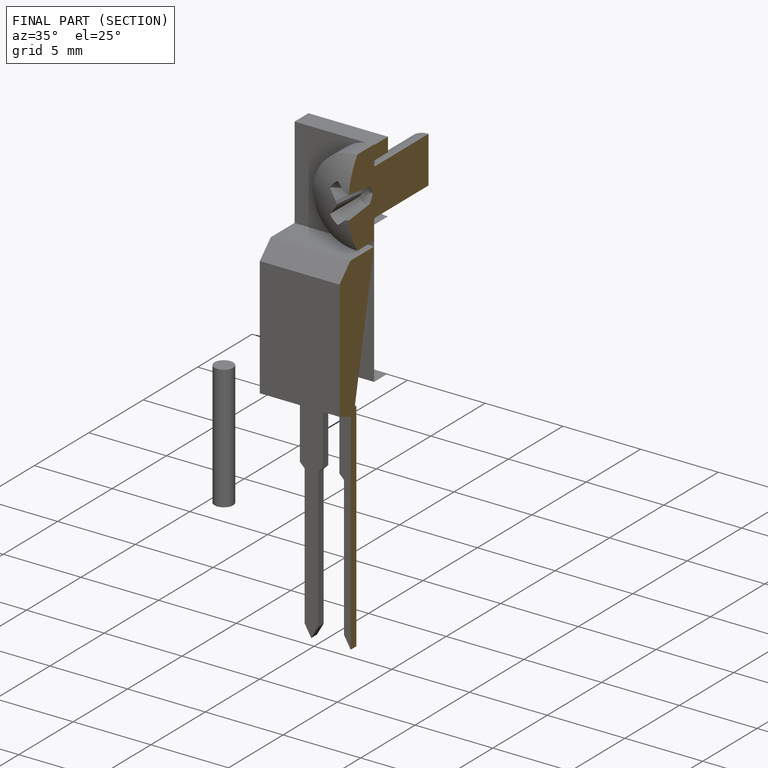
[diagram: finished part — half-section view (interior)]
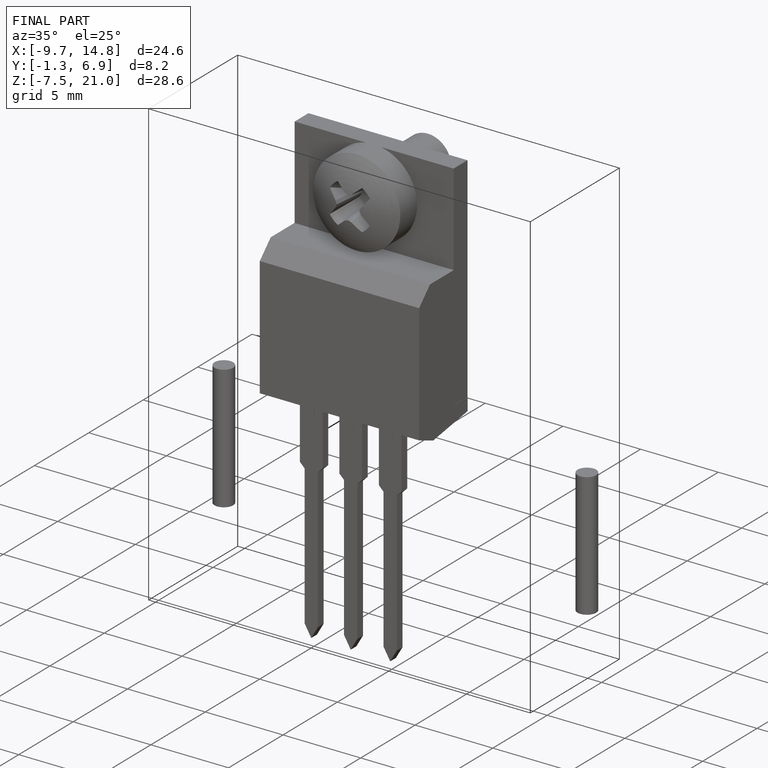
[diagram: finished part — iso view with bounding-box wireframe]
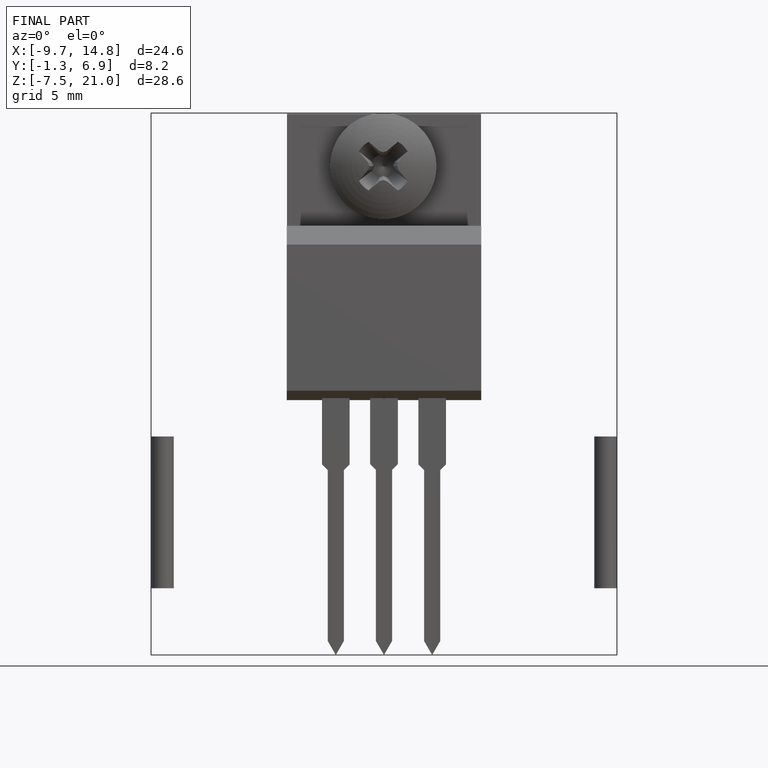
[diagram: finished part — front view with bounding-box wireframe]
